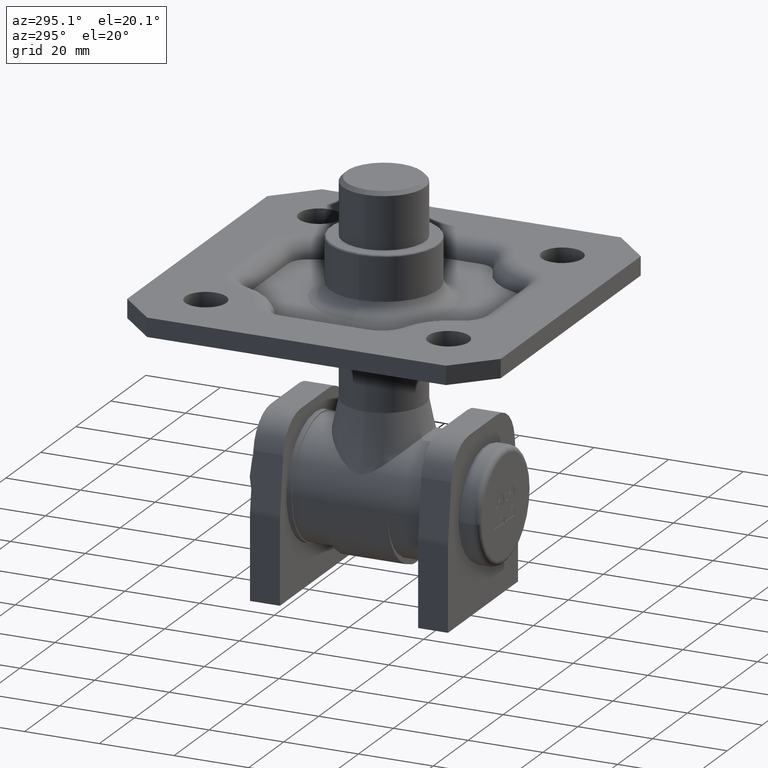
[diagram: clean part render]
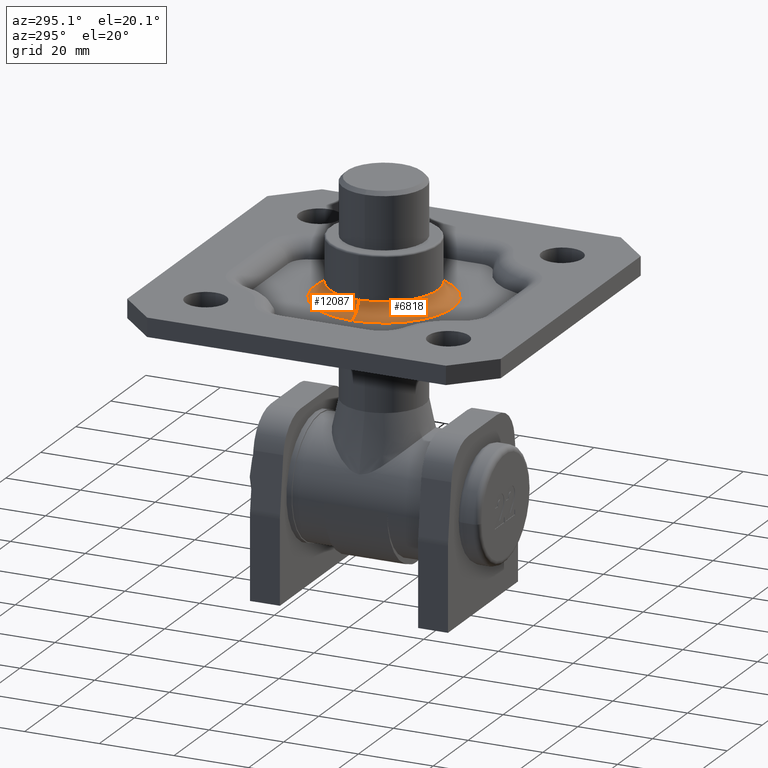
[diagram: same view with one multi-face feature highlighted, each face labeled with its STEP entity id]
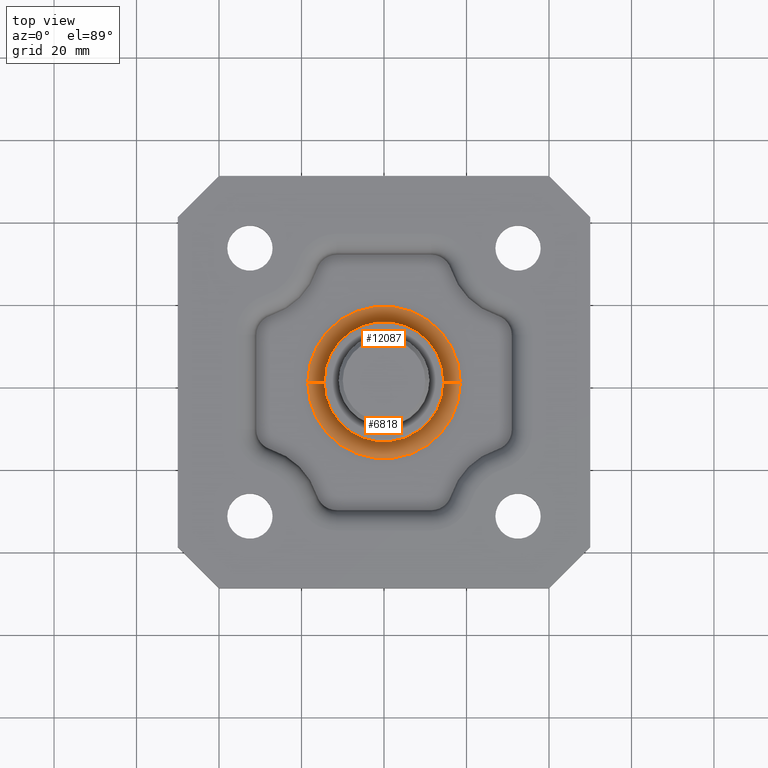
[diagram: same view with one multi-face feature highlighted, each face labeled with its STEP entity id]
A machine part, auxiliary view. The highlighted faces form ONE feature: a constant-radius fillet chain: 2 tangent blend faces with common blend radius 5 mm. The faces share edges in the B-rep.
A second angle (top view) of the same feature is appended — it is thin or edge-on in the first view.
Their STEP definitions:
[1] entity #6818 (Torus):
#361 = CARTESIAN_POINT ( 'NONE',  ( -14.50000000000033600, 0.0000000000000000000, -1.499999999999994400 ) ) ;
#460 = EDGE_CURVE ( 'NONE', #2477, #8487, #15908, .T. ) ;
#835 = EDGE_CURVE ( 'NONE', #8487, #11703, #8712, .T. ) ;
#1746 = DIRECTION ( 'NONE',  ( -1.000000000000000000, 0.0000000000000000000, 0.0000000000000000000 ) ) ;
#2133 = EDGE_CURVE ( 'NONE', #11703, #5280, #8716, .T. ) ;
#2477 = VERTEX_POINT ( 'NONE', #361 ) ;
#3265 = AXIS2_PLACEMENT_3D ( 'NONE', #7649, #13026, #11713 ) ;
#4136 = EDGE_CURVE ( 'NONE', #2477, #5280, #5251, .T. ) ;
#5251 = CIRCLE ( 'NONE', #5315, 4.999999999999999100 ) ;
#5280 = VERTEX_POINT ( 'NONE', #15618 ) ;
#5315 = AXIS2_PLACEMENT_3D ( 'NONE', #5659, #11228, #15491 ) ;
#5504 = ORIENTED_EDGE ( 'NONE', *, *, #460, .T. ) ;
#5659 = CARTESIAN_POINT ( 'NONE',  ( -19.41547594742309700, 0.0000000000000000000, -2.415475947422654400 ) ) ;
#5837 = ORIENTED_EDGE ( 'NONE', *, *, #2133, .T. ) ;
#6339 = ORIENTED_EDGE ( 'NONE', *, *, #835, .T. ) ;
#6818 = ADVANCED_FACE ( 'NONE', ( #15087 ), #12339, .F. ) ;
#7089 = CARTESIAN_POINT ( 'NONE',  ( 0.0000000000000000000, 0.0000000000000000000, -2.415475947422654400 ) ) ;
#7457 = DIRECTION ( 'NONE',  ( -1.000000000000000000, -1.224646799147353000E-016, 0.0000000000000000000 ) ) ;
#7649 = CARTESIAN_POINT ( 'NONE',  ( 0.0000000000000000000, 0.0000000000000000000, -1.499999999999994400 ) ) ;
#8279 = DIRECTION ( 'NONE',  ( -1.000000000000000000, 0.0000000000000000000, 0.0000000000000000000 ) ) ;
#8487 = VERTEX_POINT ( 'NONE', #12445 ) ;
#8712 = CIRCLE ( 'NONE', #10789, 4.999999999999999100 ) ;
#8716 = CIRCLE ( 'NONE', #15334, 18.50000000000043000 ) ;
#9110 = EDGE_LOOP ( 'NONE', ( #5504, #6339, #5837, #15069 ) ) ;
#9975 = DIRECTION ( 'NONE',  ( -1.224646799147353200E-016, 1.000000000000000000, 0.0000000000000000000 ) ) ;
#10789 = AXIS2_PLACEMENT_3D ( 'NONE', #14139, #9975, #7457 ) ;
#11228 = DIRECTION ( 'NONE',  ( -0.0000000000000000000, -1.000000000000000000, -0.0000000000000000000 ) ) ;
#11703 = VERTEX_POINT ( 'NONE', #15851 ) ;
#11713 = DIRECTION ( 'NONE',  ( -1.000000000000000000, 0.0000000000000000000, 0.0000000000000000000 ) ) ;
#12339 = TOROIDAL_SURFACE ( 'NONE', #15508, 19.41547594742264900, 4.999999999999999100 ) ;
#12445 = CARTESIAN_POINT ( 'NONE',  ( 14.50000000000000000, 2.020667218593133500E-015, -1.499999999999994400 ) ) ;
#13026 = DIRECTION ( 'NONE',  ( -0.0000000000000000000, -0.0000000000000000000, 1.000000000000000000 ) ) ;
#13820 = DIRECTION ( 'NONE',  ( 0.0000000000000000000, 0.0000000000000000000, -1.000000000000000000 ) ) ;
#14139 = CARTESIAN_POINT ( 'NONE',  ( 19.41547594742309700, 2.377710047293412000E-015, -2.415475947422654400 ) ) ;
#15069 = ORIENTED_EDGE ( 'NONE', *, *, #4136, .F. ) ;
#15087 = FACE_OUTER_BOUND ( 'NONE', #9110, .T. ) ;
#15150 = DIRECTION ( 'NONE',  ( 0.0000000000000000000, 0.0000000000000000000, -1.000000000000000000 ) ) ;
#15156 = CARTESIAN_POINT ( 'NONE',  ( 0.0000000000000000000, 0.0000000000000000000, 2.500000000000002200 ) ) ;
#15334 = AXIS2_PLACEMENT_3D ( 'NONE', #15156, #13820, #8279 ) ;
#15491 = DIRECTION ( 'NONE',  ( 0.0000000000000000000, 0.0000000000000000000, -1.000000000000000000 ) ) ;
#15508 = AXIS2_PLACEMENT_3D ( 'NONE', #7089, #15150, #1746 ) ;
#15618 = CARTESIAN_POINT ( 'NONE',  ( -18.50000000000044800, 0.0000000000000000000, 2.500000000000002200 ) ) ;
#15851 = CARTESIAN_POINT ( 'NONE',  ( 18.50000000000015300, 2.265596578422622300E-015, 2.500000000000002200 ) ) ;
#15908 = CIRCLE ( 'NONE', #3265, 14.50000000000033600 ) ;
[2] entity #12087 (Torus):
#361 = CARTESIAN_POINT ( 'NONE',  ( -14.50000000000033600, 0.0000000000000000000, -1.499999999999994400 ) ) ;
#559 = CIRCLE ( 'NONE', #10733, 14.50000000000033600 ) ;
#835 = EDGE_CURVE ( 'NONE', #8487, #11703, #8712, .T. ) ;
#1298 = TOROIDAL_SURFACE ( 'NONE', #8611, 19.41547594742264900, 4.999999999999999100 ) ;
#1472 = ORIENTED_EDGE ( 'NONE', *, *, #835, .F. ) ;
#1581 = DIRECTION ( 'NONE',  ( -1.000000000000000000, 0.0000000000000000000, 0.0000000000000000000 ) ) ;
#2182 = FACE_OUTER_BOUND ( 'NONE', #12049, .T. ) ;
#2477 = VERTEX_POINT ( 'NONE', #361 ) ;
#2924 = CARTESIAN_POINT ( 'NONE',  ( 0.0000000000000000000, 0.0000000000000000000, -2.415475947422654400 ) ) ;
#3465 = CIRCLE ( 'NONE', #13453, 18.50000000000043000 ) ;
#4136 = EDGE_CURVE ( 'NONE', #2477, #5280, #5251, .T. ) ;
#4346 = DIRECTION ( 'NONE',  ( -0.0000000000000000000, -0.0000000000000000000, 1.000000000000000000 ) ) ;
#4443 = CARTESIAN_POINT ( 'NONE',  ( 0.0000000000000000000, 0.0000000000000000000, 2.500000000000002200 ) ) ;
#4495 = DIRECTION ( 'NONE',  ( 0.0000000000000000000, 0.0000000000000000000, -1.000000000000000000 ) ) ;
#4972 = ORIENTED_EDGE ( 'NONE', *, *, #4136, .T. ) ;
#5251 = CIRCLE ( 'NONE', #5315, 4.999999999999999100 ) ;
#5280 = VERTEX_POINT ( 'NONE', #15618 ) ;
#5315 = AXIS2_PLACEMENT_3D ( 'NONE', #5659, #11228, #15491 ) ;
#5659 = CARTESIAN_POINT ( 'NONE',  ( -19.41547594742309700, 0.0000000000000000000, -2.415475947422654400 ) ) ;
#5663 = EDGE_CURVE ( 'NONE', #8487, #2477, #559, .T. ) ;
#5934 = ORIENTED_EDGE ( 'NONE', *, *, #15837, .T. ) ;
#7261 = DIRECTION ( 'NONE',  ( -1.000000000000000000, 0.0000000000000000000, 0.0000000000000000000 ) ) ;
#7457 = DIRECTION ( 'NONE',  ( -1.000000000000000000, -1.224646799147353000E-016, 0.0000000000000000000 ) ) ;
#8487 = VERTEX_POINT ( 'NONE', #12445 ) ;
#8611 = AXIS2_PLACEMENT_3D ( 'NONE', #2924, #4495, #7261 ) ;
#8712 = CIRCLE ( 'NONE', #10789, 4.999999999999999100 ) ;
#9975 = DIRECTION ( 'NONE',  ( -1.224646799147353200E-016, 1.000000000000000000, 0.0000000000000000000 ) ) ;
#10733 = AXIS2_PLACEMENT_3D ( 'NONE', #15003, #4346, #12289 ) ;
#10789 = AXIS2_PLACEMENT_3D ( 'NONE', #14139, #9975, #7457 ) ;
#11032 = DIRECTION ( 'NONE',  ( 0.0000000000000000000, 0.0000000000000000000, -1.000000000000000000 ) ) ;
#11228 = DIRECTION ( 'NONE',  ( -0.0000000000000000000, -1.000000000000000000, -0.0000000000000000000 ) ) ;
#11703 = VERTEX_POINT ( 'NONE', #15851 ) ;
#12049 = EDGE_LOOP ( 'NONE', ( #1472, #16102, #4972, #5934 ) ) ;
#12087 = ADVANCED_FACE ( 'NONE', ( #2182 ), #1298, .F. ) ;
#12289 = DIRECTION ( 'NONE',  ( -1.000000000000000000, 0.0000000000000000000, 0.0000000000000000000 ) ) ;
#12445 = CARTESIAN_POINT ( 'NONE',  ( 14.50000000000000000, 2.020667218593133500E-015, -1.499999999999994400 ) ) ;
#13453 = AXIS2_PLACEMENT_3D ( 'NONE', #4443, #11032, #1581 ) ;
#14139 = CARTESIAN_POINT ( 'NONE',  ( 19.41547594742309700, 2.377710047293412000E-015, -2.415475947422654400 ) ) ;
#15003 = CARTESIAN_POINT ( 'NONE',  ( 0.0000000000000000000, 0.0000000000000000000, -1.499999999999994400 ) ) ;
#15491 = DIRECTION ( 'NONE',  ( 0.0000000000000000000, 0.0000000000000000000, -1.000000000000000000 ) ) ;
#15618 = CARTESIAN_POINT ( 'NONE',  ( -18.50000000000044800, 0.0000000000000000000, 2.500000000000002200 ) ) ;
#15837 = EDGE_CURVE ( 'NONE', #5280, #11703, #3465, .T. ) ;
#15851 = CARTESIAN_POINT ( 'NONE',  ( 18.50000000000015300, 2.265596578422622300E-015, 2.500000000000002200 ) ) ;
#16102 = ORIENTED_EDGE ( 'NONE', *, *, #5663, .T. ) ;